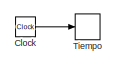
[diagram: root canvas - part 1/3, top right region]
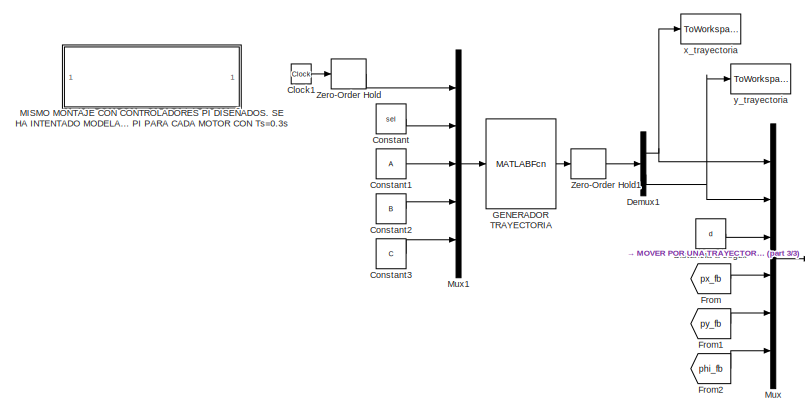
[diagram: root canvas - part 2/3, left side, full height]
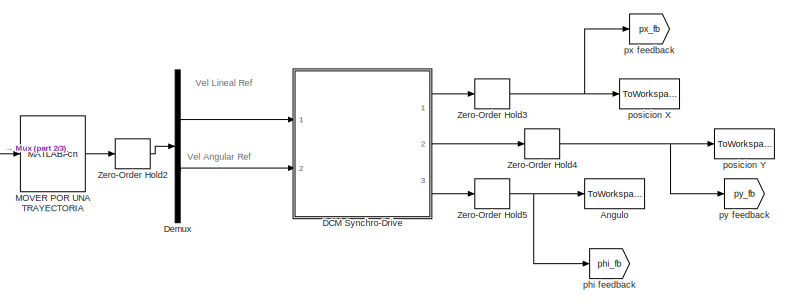
[diagram: root canvas - part 3/3, central region]
MODEL slx_b53bb859597c
KIND model
CONFIG AbsTol = auto
CONFIG EnableMultiTasking = off
CONFIG FixedStep = auto
CONFIG MaxStep = auto
CONFIG MinStep = auto
CONFIG RelTol = 1e-3
CONFIG SampleTimeConstraint = Unconstrained
CONFIG Solver = VariableStepAuto
CONFIG SolverName = VariableStepAuto
CONFIG StartTime = 0.0
CONFIG StopTime = tsim
BLOCK [ToWorkspace] Angulo
  FixptAsFi = on
  MaxDataPoints = inf
  Ports = [1]
  SampleTime = -1
  Save2DSignal = 3-D array (concatenate along third dimension)
  VariableName = ang_phi
BLOCK [Clock] Clock
BLOCK [Clock] Clock1
BLOCK [Constant] Constant
  Value = sel
BLOCK [Constant] Constant1
  Value = A
BLOCK [Constant] Constant2
  Value = B
BLOCK [Constant] Constant3
  Value = C
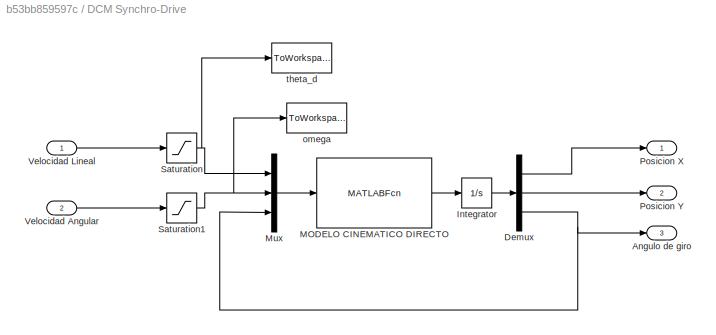
BLOCK [SubSystem] DCM Synchro-Drive
  Ports = [2, 3]
  RequestExecContextInheritance = off
  Variant = off
BLOCK [Outport] DCM Synchro-Drive/Angulo de giro
  IconDisplay = Port number
  Port = 3
BLOCK [Demux] DCM Synchro-Drive/Demux
  DisplayOption = bar
  Outputs = 3
  Ports = [1, 3]
BLOCK [Integrator] DCM Synchro-Drive/Integrator
  InitialCondition = pos_init
  Ports = [1, 1]
BLOCK [MATLABFcn] DCM Synchro-Drive/MODELO CINEMATICO DIRECTO
  MATLABFcn = MCD_movil
  OutputDimensions = 3
  Ports = [1, 1]
BLOCK [Mux] DCM Synchro-Drive/Mux
  DisplayOption = bar
  Inputs = 3
  Ports = [3, 1]
BLOCK [Outport] DCM Synchro-Drive/Posicion X
  IconDisplay = Port number
BLOCK [Outport] DCM Synchro-Drive/Posicion Y
  IconDisplay = Port number
  Port = 2
BLOCK [Saturate] DCM Synchro-Drive/Saturation
  InputPortMap = u0
  LowerLimit = tetha_d_sat(1)
  Ports = [1, 1]
  UpperLimit = tetha_d_sat(2)
BLOCK [Saturate] DCM Synchro-Drive/Saturation1
  InputPortMap = u0
  LowerLimit = omega_sat(1)
  Ports = [1, 1]
  UpperLimit = omega_sat(2)
BLOCK [Inport] DCM Synchro-Drive/Velocidad Angular
  IconDisplay = Port number
  Port = 2
BLOCK [Inport] DCM Synchro-Drive/Velocidad Lineal
  IconDisplay = Port number
BLOCK [ToWorkspace] DCM Synchro-Drive/omega
  FixptAsFi = on
  MaxDataPoints = inf
  Ports = [1]
  SampleTime = -1
  Save2DSignal = 3-D array (concatenate along third dimension)
  VariableName = omega
BLOCK [ToWorkspace] DCM Synchro-Drive/theta_d
  FixptAsFi = on
  MaxDataPoints = inf
  Ports = [1]
  SampleTime = -1
  Save2DSignal = 3-D array (concatenate along third dimension)
  VariableName = theta_d
BLOCK [Demux] Demux
  DisplayOption = bar
  Outputs = 2
  Ports = [1, 2]
BLOCK [Demux] Demux1
  DisplayOption = bar
  Outputs = 2
  Ports = [1, 2]
BLOCK [Constant] Distancia a seguir
  Value = d
BLOCK [From] From
  GotoTag = px_fb
BLOCK [From] From1
  GotoTag = py_fb
BLOCK [From] From2
  GotoTag = phi_fb
BLOCK [MATLABFcn] GENERADOR TRAYECTORIA
  MATLABFcn = generador_tray
  OutputDimensions = 2
  Ports = [1, 1]
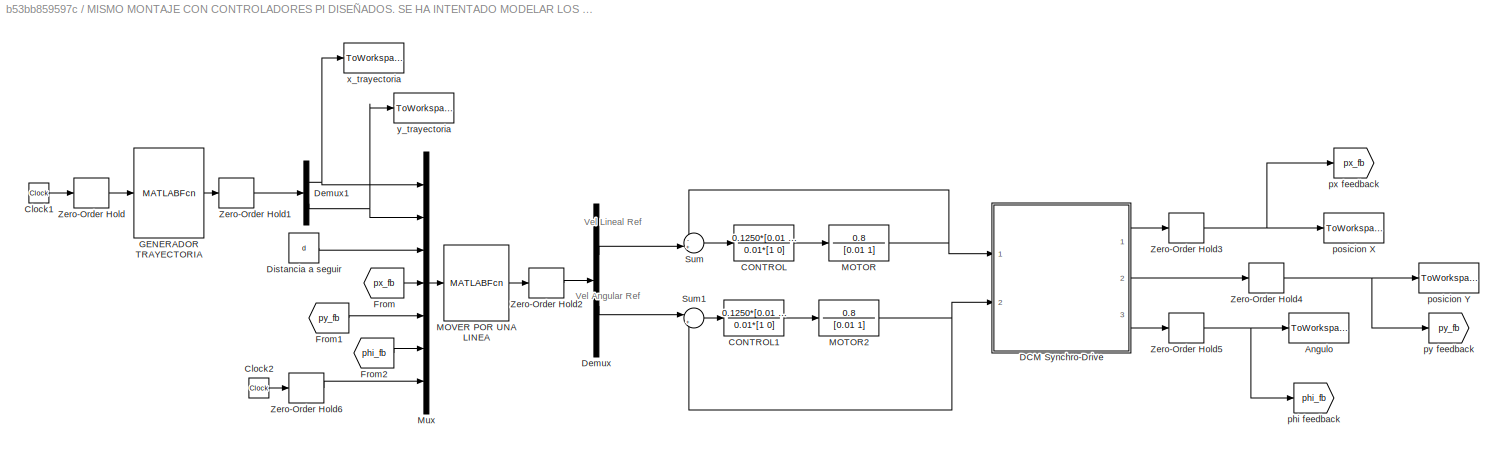
BLOCK [SubSystem] MISMO MONTAJE CON CONTROLADORES PI DISEÑADOS. SE HA INTENTADO MODELAR LOS MOTORES Y DISEÑAR UN PI PARA CADA MOTOR CON Ts=0.3s
  Commented = on
  Ports = []
  RequestExecContextInheritance = off
  Variant = off
BLOCK [ToWorkspace] MISMO MONTAJE CON CONTROLADORES PI DISEÑADOS. SE HA INTENTADO MODELAR LOS MOTORES Y DISEÑAR UN PI PARA CADA MOTOR CON Ts=0.3s/Angulo
  FixptAsFi = on
  MaxDataPoints = inf
  Ports = [1]
  SampleTime = -1
  Save2DSignal = 3-D array (concatenate along third dimension)
  VariableName = ang_phi1
BLOCK [TransferFcn] MISMO MONTAJE CON CONTROLADORES PI DISEÑADOS. SE HA INTENTADO MODELAR LOS MOTORES Y DISEÑAR UN PI PARA CADA MOTOR CON Ts=0.3s/CONTROL
  Denominator = 0.01*[1 0]
  Numerator = 0.1250*[0.01 1]
BLOCK [TransferFcn] MISMO MONTAJE CON CONTROLADORES PI DISEÑADOS. SE HA INTENTADO MODELAR LOS MOTORES Y DISEÑAR UN PI PARA CADA MOTOR CON Ts=0.3s/CONTROL1
  Denominator = 0.01*[1 0]
  Numerator = 0.1250*[0.01 1]
BLOCK [Clock] MISMO MONTAJE CON CONTROLADORES PI DISEÑADOS. SE HA INTENTADO MODELAR LOS MOTORES Y DISEÑAR UN PI PARA CADA MOTOR CON Ts=0.3s/Clock1
BLOCK [Clock] MISMO MONTAJE CON CONTROLADORES PI DISEÑADOS. SE HA INTENTADO MODELAR LOS MOTORES Y DISEÑAR UN PI PARA CADA MOTOR CON Ts=0.3s/Clock2
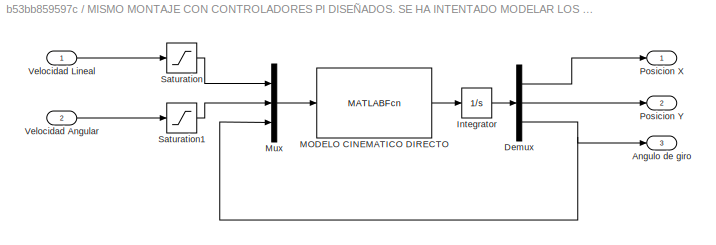
BLOCK [SubSystem] MISMO MONTAJE CON CONTROLADORES PI DISEÑADOS. SE HA INTENTADO MODELAR LOS MOTORES Y DISEÑAR UN PI PARA CADA MOTOR CON Ts=0.3s/DCM Synchro-Drive
  Ports = [2, 3]
  RequestExecContextInheritance = off
  Variant = off
BLOCK [Outport] MISMO MONTAJE CON CONTROLADORES PI DISEÑADOS. SE HA INTENTADO MODELAR LOS MOTORES Y DISEÑAR UN PI PARA CADA MOTOR CON Ts=0.3s/DCM Synchro-Drive/Angulo de giro
  IconDisplay = Port number
  Port = 3
BLOCK [Demux] MISMO MONTAJE CON CONTROLADORES PI DISEÑADOS. SE HA INTENTADO MODELAR LOS MOTORES Y DISEÑAR UN PI PARA CADA MOTOR CON Ts=0.3s/DCM Synchro-Drive/Demux
  DisplayOption = bar
  Outputs = 3
  Ports = [1, 3]
BLOCK [Integrator] MISMO MONTAJE CON CONTROLADORES PI DISEÑADOS. SE HA INTENTADO MODELAR LOS MOTORES Y DISEÑAR UN PI PARA CADA MOTOR CON Ts=0.3s/DCM Synchro-Drive/Integrator
  InitialCondition = pos_init
  Ports = [1, 1]
BLOCK [MATLABFcn] MISMO MONTAJE CON CONTROLADORES PI DISEÑADOS. SE HA INTENTADO MODELAR LOS MOTORES Y DISEÑAR UN PI PARA CADA MOTOR CON Ts=0.3s/DCM Synchro-Drive/MODELO CINEMATICO DIRECTO
  MATLABFcn = MCD_movil
  OutputDimensions = 3
  Ports = [1, 1]
BLOCK [Mux] MISMO MONTAJE CON CONTROLADORES PI DISEÑADOS. SE HA INTENTADO MODELAR LOS MOTORES Y DISEÑAR UN PI PARA CADA MOTOR CON Ts=0.3s/DCM Synchro-Drive/Mux
  DisplayOption = bar
  Inputs = 3
  Ports = [3, 1]
BLOCK [Outport] MISMO MONTAJE CON CONTROLADORES PI DISEÑADOS. SE HA INTENTADO MODELAR LOS MOTORES Y DISEÑAR UN PI PARA CADA MOTOR CON Ts=0.3s/DCM Synchro-Drive/Posicion X
  IconDisplay = Port number
BLOCK [Outport] MISMO MONTAJE CON CONTROLADORES PI DISEÑADOS. SE HA INTENTADO MODELAR LOS MOTORES Y DISEÑAR UN PI PARA CADA MOTOR CON Ts=0.3s/DCM Synchro-Drive/Posicion Y
  IconDisplay = Port number
  Port = 2
BLOCK [Saturate] MISMO MONTAJE CON CONTROLADORES PI DISEÑADOS. SE HA INTENTADO MODELAR LOS MOTORES Y DISEÑAR UN PI PARA CADA MOTOR CON Ts=0.3s/DCM Synchro-Drive/Saturation
  InputPortMap = u0
  LowerLimit = tetha_d_sat(1)
  Ports = [1, 1]
  UpperLimit = tetha_d_sat(2)
BLOCK [Saturate] MISMO MONTAJE CON CONTROLADORES PI DISEÑADOS. SE HA INTENTADO MODELAR LOS MOTORES Y DISEÑAR UN PI PARA CADA MOTOR CON Ts=0.3s/DCM Synchro-Drive/Saturation1
  InputPortMap = u0
  LowerLimit = omega_sat(1)
  Ports = [1, 1]
  UpperLimit = omega_sat(2)
BLOCK [Inport] MISMO MONTAJE CON CONTROLADORES PI DISEÑADOS. SE HA INTENTADO MODELAR LOS MOTORES Y DISEÑAR UN PI PARA CADA MOTOR CON Ts=0.3s/DCM Synchro-Drive/Velocidad Angular
  IconDisplay = Port number
  Port = 2
BLOCK [Inport] MISMO MONTAJE CON CONTROLADORES PI DISEÑADOS. SE HA INTENTADO MODELAR LOS MOTORES Y DISEÑAR UN PI PARA CADA MOTOR CON Ts=0.3s/DCM Synchro-Drive/Velocidad Lineal
  IconDisplay = Port number
BLOCK [Demux] MISMO MONTAJE CON CONTROLADORES PI DISEÑADOS. SE HA INTENTADO MODELAR LOS MOTORES Y DISEÑAR UN PI PARA CADA MOTOR CON Ts=0.3s/Demux
  DisplayOption = bar
  Outputs = 2
  Ports = [1, 2]
BLOCK [Demux] MISMO MONTAJE CON CONTROLADORES PI DISEÑADOS. SE HA INTENTADO MODELAR LOS MOTORES Y DISEÑAR UN PI PARA CADA MOTOR CON Ts=0.3s/Demux1
  DisplayOption = bar
  Outputs = 2
  Ports = [1, 2]
BLOCK [Constant] MISMO MONTAJE CON CONTROLADORES PI DISEÑADOS. SE HA INTENTADO MODELAR LOS MOTORES Y DISEÑAR UN PI PARA CADA MOTOR CON Ts=0.3s/Distancia a seguir
  Value = d
BLOCK [From] MISMO MONTAJE CON CONTROLADORES PI DISEÑADOS. SE HA INTENTADO MODELAR LOS MOTORES Y DISEÑAR UN PI PARA CADA MOTOR CON Ts=0.3s/From
  GotoTag = px_fb
BLOCK [From] MISMO MONTAJE CON CONTROLADORES PI DISEÑADOS. SE HA INTENTADO MODELAR LOS MOTORES Y DISEÑAR UN PI PARA CADA MOTOR CON Ts=0.3s/From1
  GotoTag = py_fb
BLOCK [From] MISMO MONTAJE CON CONTROLADORES PI DISEÑADOS. SE HA INTENTADO MODELAR LOS MOTORES Y DISEÑAR UN PI PARA CADA MOTOR CON Ts=0.3s/From2
  GotoTag = phi_fb
BLOCK [MATLABFcn] MISMO MONTAJE CON CONTROLADORES PI DISEÑADOS. SE HA INTENTADO MODELAR LOS MOTORES Y DISEÑAR UN PI PARA CADA MOTOR CON Ts=0.3s/GENERADOR TRAYECTORIA
  MATLABFcn = generador_tray
  OutputDimensions = 2
  Ports = [1, 1]
BLOCK [TransferFcn] MISMO MONTAJE CON CONTROLADORES PI DISEÑADOS. SE HA INTENTADO MODELAR LOS MOTORES Y DISEÑAR UN PI PARA CADA MOTOR CON Ts=0.3s/MOTOR
  Denominator = [0.01 1]
  Numerator = 0.8
BLOCK [TransferFcn] MISMO MONTAJE CON CONTROLADORES PI DISEÑADOS. SE HA INTENTADO MODELAR LOS MOTORES Y DISEÑAR UN PI PARA CADA MOTOR CON Ts=0.3s/MOTOR2
  Denominator = [0.01 1]
  Numerator = 0.8
BLOCK [MATLABFcn] MISMO MONTAJE CON CONTROLADORES PI DISEÑADOS. SE HA INTENTADO MODELAR LOS MOTORES Y DISEÑAR UN PI PARA CADA MOTOR CON Ts=0.3s/MOVER POR UNA LINEA
  MATLABFcn = control_linea
  OutputDimensions = 2
  Ports = [1, 1]
BLOCK [Mux] MISMO MONTAJE CON CONTROLADORES PI DISEÑADOS. SE HA INTENTADO MODELAR LOS MOTORES Y DISEÑAR UN PI PARA CADA MOTOR CON Ts=0.3s/Mux
  DisplayOption = bar
  Inputs = 7
  Ports = [7, 1]
BLOCK [Sum] MISMO MONTAJE CON CONTROLADORES PI DISEÑADOS. SE HA INTENTADO MODELAR LOS MOTORES Y DISEÑAR UN PI PARA CADA MOTOR CON Ts=0.3s/Sum
  IconShape = round
  InputSameDT = off
  Inputs = -+|
  OutDataTypeStr = Inherit: Inherit via internal rule
  Ports = [2, 1]
  SaturateOnIntegerOverflow = off
BLOCK [Sum] MISMO MONTAJE CON CONTROLADORES PI DISEÑADOS. SE HA INTENTADO MODELAR LOS MOTORES Y DISEÑAR UN PI PARA CADA MOTOR CON Ts=0.3s/Sum1
  IconShape = round
  InputSameDT = off
  Inputs = |+-
  OutDataTypeStr = Inherit: Inherit via internal rule
  Ports = [2, 1]
  SaturateOnIntegerOverflow = off
BLOCK [ZeroOrderHold] MISMO MONTAJE CON CONTROLADORES PI DISEÑADOS. SE HA INTENTADO MODELAR LOS MOTORES Y DISEÑAR UN PI PARA CADA MOTOR CON Ts=0.3s/Zero-Order Hold
  SampleTime = Tm
BLOCK [ZeroOrderHold] MISMO MONTAJE CON CONTROLADORES PI DISEÑADOS. SE HA INTENTADO MODELAR LOS MOTORES Y DISEÑAR UN PI PARA CADA MOTOR CON Ts=0.3s/Zero-Order Hold1
  SampleTime = Tm
BLOCK [ZeroOrderHold] MISMO MONTAJE CON CONTROLADORES PI DISEÑADOS. SE HA INTENTADO MODELAR LOS MOTORES Y DISEÑAR UN PI PARA CADA MOTOR CON Ts=0.3s/Zero-Order Hold2
  SampleTime = Tm
BLOCK [ZeroOrderHold] MISMO MONTAJE CON CONTROLADORES PI DISEÑADOS. SE HA INTENTADO MODELAR LOS MOTORES Y DISEÑAR UN PI PARA CADA MOTOR CON Ts=0.3s/Zero-Order Hold3
  SampleTime = Tm
BLOCK [ZeroOrderHold] MISMO MONTAJE CON CONTROLADORES PI DISEÑADOS. SE HA INTENTADO MODELAR LOS MOTORES Y DISEÑAR UN PI PARA CADA MOTOR CON Ts=0.3s/Zero-Order Hold4
  SampleTime = Tm
BLOCK [ZeroOrderHold] MISMO MONTAJE CON CONTROLADORES PI DISEÑADOS. SE HA INTENTADO MODELAR LOS MOTORES Y DISEÑAR UN PI PARA CADA MOTOR CON Ts=0.3s/Zero-Order Hold5
  SampleTime = Tm
BLOCK [ZeroOrderHold] MISMO MONTAJE CON CONTROLADORES PI DISEÑADOS. SE HA INTENTADO MODELAR LOS MOTORES Y DISEÑAR UN PI PARA CADA MOTOR CON Ts=0.3s/Zero-Order Hold6
  SampleTime = Tm
BLOCK [Goto] MISMO MONTAJE CON CONTROLADORES PI DISEÑADOS. SE HA INTENTADO MODELAR LOS MOTORES Y DISEÑAR UN PI PARA CADA MOTOR CON Ts=0.3s/phi feedback
  GotoTag = phi_fb
BLOCK [ToWorkspace] MISMO MONTAJE CON CONTROLADORES PI DISEÑADOS. SE HA INTENTADO MODELAR LOS MOTORES Y DISEÑAR UN PI PARA CADA MOTOR CON Ts=0.3s/posicion X
  FixptAsFi = on
  MaxDataPoints = inf
  Ports = [1]
  SampleTime = -1
  Save2DSignal = 3-D array (concatenate along third dimension)
  VariableName = posx1
BLOCK [ToWorkspace] MISMO MONTAJE CON CONTROLADORES PI DISEÑADOS. SE HA INTENTADO MODELAR LOS MOTORES Y DISEÑAR UN PI PARA CADA MOTOR CON Ts=0.3s/posicion Y
  FixptAsFi = on
  MaxDataPoints = inf
  Ports = [1]
  SampleTime = -1
  Save2DSignal = 3-D array (concatenate along third dimension)
  VariableName = posy1
BLOCK [Goto] MISMO MONTAJE CON CONTROLADORES PI DISEÑADOS. SE HA INTENTADO MODELAR LOS MOTORES Y DISEÑAR UN PI PARA CADA MOTOR CON Ts=0.3s/px feedback
  GotoTag = px_fb
BLOCK [Goto] MISMO MONTAJE CON CONTROLADORES PI DISEÑADOS. SE HA INTENTADO MODELAR LOS MOTORES Y DISEÑAR UN PI PARA CADA MOTOR CON Ts=0.3s/py feedback
  GotoTag = py_fb
BLOCK [ToWorkspace] MISMO MONTAJE CON CONTROLADORES PI DISEÑADOS. SE HA INTENTADO MODELAR LOS MOTORES Y DISEÑAR UN PI PARA CADA MOTOR CON Ts=0.3s/x_trayectoria
  FixptAsFi = on
  MaxDataPoints = inf
  Ports = [1]
  SampleTime = Tm
  Save2DSignal = 3-D array (concatenate along third dimension)
  VariableName = x_tray1
BLOCK [ToWorkspace] MISMO MONTAJE CON CONTROLADORES PI DISEÑADOS. SE HA INTENTADO MODELAR LOS MOTORES Y DISEÑAR UN PI PARA CADA MOTOR CON Ts=0.3s/y_trayectoria
  FixptAsFi = on
  MaxDataPoints = inf
  Ports = [1]
  SampleTime = Tm
  Save2DSignal = 3-D array (concatenate along third dimension)
  VariableName = y_tray1
BLOCK [MATLABFcn] MOVER POR UNA TRAYECTORIA
  MATLABFcn = control_tray
  OutputDimensions = 2
  Ports = [1, 1]
BLOCK [Mux] Mux
  DisplayOption = bar
  Inputs = 6
  Ports = [6, 1]
BLOCK [Mux] Mux1
  DisplayOption = bar
  Inputs = 5
  Ports = [5, 1]
BLOCK [ToWorkspace] Tiempo
  FixptAsFi = on
  MaxDataPoints = inf
  Ports = [1]
  SampleTime = -1
  Save2DSignal = 3-D array (concatenate along third dimension)
  VariableName = t
BLOCK [ZeroOrderHold] Zero-Order Hold
  SampleTime = Tm
BLOCK [ZeroOrderHold] Zero-Order Hold1
  SampleTime = Tm
BLOCK [ZeroOrderHold] Zero-Order Hold2
  SampleTime = Tm
BLOCK [ZeroOrderHold] Zero-Order Hold3
  SampleTime = Tm
BLOCK [ZeroOrderHold] Zero-Order Hold4
  SampleTime = Tm
BLOCK [ZeroOrderHold] Zero-Order Hold5
  SampleTime = Tm
BLOCK [Goto] phi feedback
  GotoTag = phi_fb
BLOCK [ToWorkspace] posicion X
  FixptAsFi = on
  MaxDataPoints = inf
  Ports = [1]
  SampleTime = -1
  Save2DSignal = 3-D array (concatenate along third dimension)
  VariableName = posx
BLOCK [ToWorkspace] posicion Y
  FixptAsFi = on
  MaxDataPoints = inf
  Ports = [1]
  SampleTime = -1
  Save2DSignal = 3-D array (concatenate along third dimension)
  VariableName = posy
BLOCK [Goto] px feedback
  GotoTag = px_fb
BLOCK [Goto] py feedback
  GotoTag = py_fb
BLOCK [ToWorkspace] x_trayectoria
  FixptAsFi = on
  MaxDataPoints = inf
  Ports = [1]
  SampleTime = Tm
  Save2DSignal = 3-D array (concatenate along third dimension)
  VariableName = x_tray
BLOCK [ToWorkspace] y_trayectoria
  FixptAsFi = on
  MaxDataPoints = inf
  Ports = [1]
  SampleTime = Tm
  Save2DSignal = 3-D array (concatenate along third dimension)
  VariableName = y_tray
ANNOTATION (root): Vel Angular Ref
ANNOTATION (root): Vel Lineal Ref
ANNOTATION MISMO MONTAJE CON CONTROLADORES PI DISEÑADOS. SE HA INTENTADO MODELAR LOS MOTORES Y DISEÑAR UN PI PARA CADA MOTOR CON Ts=0.3s: Vel Angular Ref
ANNOTATION MISMO MONTAJE CON CONTROLADORES PI DISEÑADOS. SE HA INTENTADO MODELAR LOS MOTORES Y DISEÑAR UN PI PARA CADA MOTOR CON Ts=0.3s: Vel Lineal Ref
LINE Clock1:1 -> Zero-Order Hold:1
LINE Clock:1 -> Tiempo:1
LINE Constant1:1 -> Mux1:3
LINE Constant2:1 -> Mux1:4
LINE Constant3:1 -> Mux1:5
LINE Constant:1 -> Mux1:2
LINE DCM Synchro-Drive/Demux:1 -> DCM Synchro-Drive/Posicion X:1
LINE DCM Synchro-Drive/Demux:2 -> DCM Synchro-Drive/Posicion Y:1
NET DCM Synchro-Drive/Demux:3 -> DCM Synchro-Drive/Angulo de giro:1, DCM Synchro-Drive/Mux:3
LINE DCM Synchro-Drive/Integrator:1 -> DCM Synchro-Drive/Demux:1
LINE DCM Synchro-Drive/MODELO CINEMATICO DIRECTO:1 -> DCM Synchro-Drive/Integrator:1
LINE DCM Synchro-Drive/Mux:1 -> DCM Synchro-Drive/MODELO CINEMATICO DIRECTO:1
NET DCM Synchro-Drive/Saturation1:1 -> DCM Synchro-Drive/Mux:2, DCM Synchro-Drive/omega:1
NET DCM Synchro-Drive/Saturation:1 -> DCM Synchro-Drive/Mux:1, DCM Synchro-Drive/theta_d:1
LINE DCM Synchro-Drive/Velocidad Angular:1 -> DCM Synchro-Drive/Saturation1:1
LINE DCM Synchro-Drive/Velocidad Lineal:1 -> DCM Synchro-Drive/Saturation:1
LINE DCM Synchro-Drive:1 -> Zero-Order Hold3:1
LINE DCM Synchro-Drive:2 -> Zero-Order Hold4:1
LINE DCM Synchro-Drive:3 -> Zero-Order Hold5:1
NET Demux1:1 -> Mux:1, x_trayectoria:1
NET Demux1:2 -> Mux:2, y_trayectoria:1
LINE Demux:1 -> DCM Synchro-Drive:1
LINE Demux:2 -> DCM Synchro-Drive:2
LINE Distancia a seguir:1 -> Mux:3
LINE From1:1 -> Mux:5
LINE From2:1 -> Mux:6
LINE From:1 -> Mux:4
LINE GENERADOR TRAYECTORIA:1 -> Zero-Order Hold1:1
LINE MISMO MONTAJE CON CONTROLADORES PI DISEÑADOS. SE HA INTENTADO MODELAR LOS MOTORES Y DISEÑAR UN PI PARA CADA MOTOR CON Ts=0.3s/CONTROL1:1 -> MISMO MONTAJE CON CONTROLADORES PI DISEÑADOS. SE HA INTENTADO MODELAR LOS MOTORES Y DISEÑAR UN PI PARA CADA MOTOR CON Ts=0.3s/MOTOR2:1
LINE MISMO MONTAJE CON CONTROLADORES PI DISEÑADOS. SE HA INTENTADO MODELAR LOS MOTORES Y DISEÑAR UN PI PARA CADA MOTOR CON Ts=0.3s/CONTROL:1 -> MISMO MONTAJE CON CONTROLADORES PI DISEÑADOS. SE HA INTENTADO MODELAR LOS MOTORES Y DISEÑAR UN PI PARA CADA MOTOR CON Ts=0.3s/MOTOR:1
LINE MISMO MONTAJE CON CONTROLADORES PI DISEÑADOS. SE HA INTENTADO MODELAR LOS MOTORES Y DISEÑAR UN PI PARA CADA MOTOR CON Ts=0.3s/Clock1:1 -> MISMO MONTAJE CON CONTROLADORES PI DISEÑADOS. SE HA INTENTADO MODELAR LOS MOTORES Y DISEÑAR UN PI PARA CADA MOTOR CON Ts=0.3s/Zero-Order Hold:1
LINE MISMO MONTAJE CON CONTROLADORES PI DISEÑADOS. SE HA INTENTADO MODELAR LOS MOTORES Y DISEÑAR UN PI PARA CADA MOTOR CON Ts=0.3s/Clock2:1 -> MISMO MONTAJE CON CONTROLADORES PI DISEÑADOS. SE HA INTENTADO MODELAR LOS MOTORES Y DISEÑAR UN PI PARA CADA MOTOR CON Ts=0.3s/Zero-Order Hold6:1
LINE MISMO MONTAJE CON CONTROLADORES PI DISEÑADOS. SE HA INTENTADO MODELAR LOS MOTORES Y DISEÑAR UN PI PARA CADA MOTOR CON Ts=0.3s/DCM Synchro-Drive/Demux:1 -> MISMO MONTAJE CON CONTROLADORES PI DISEÑADOS. SE HA INTENTADO MODELAR LOS MOTORES Y DISEÑAR UN PI PARA CADA MOTOR CON Ts=0.3s/DCM Synchro-Drive/Posicion X:1
LINE MISMO MONTAJE CON CONTROLADORES PI DISEÑADOS. SE HA INTENTADO MODELAR LOS MOTORES Y DISEÑAR UN PI PARA CADA MOTOR CON Ts=0.3s/DCM Synchro-Drive/Demux:2 -> MISMO MONTAJE CON CONTROLADORES PI DISEÑADOS. SE HA INTENTADO MODELAR LOS MOTORES Y DISEÑAR UN PI PARA CADA MOTOR CON Ts=0.3s/DCM Synchro-Drive/Posicion Y:1
NET MISMO MONTAJE CON CONTROLADORES PI DISEÑADOS. SE HA INTENTADO MODELAR LOS MOTORES Y DISEÑAR UN PI PARA CADA MOTOR CON Ts=0.3s/DCM Synchro-Drive/Demux:3 -> MISMO MONTAJE CON CONTROLADORES PI DISEÑADOS. SE HA INTENTADO MODELAR LOS MOTORES Y DISEÑAR UN PI PARA CADA MOTOR CON Ts=0.3s/DCM Synchro-Drive/Angulo de giro:1, MISMO MONTAJE CON CONTROLADORES PI DISEÑADOS. SE HA INTENTADO MODELAR LOS MOTORES Y DISEÑAR UN PI PARA CADA MOTOR CON Ts=0.3s/DCM Synchro-Drive/Mux:3
LINE MISMO MONTAJE CON CONTROLADORES PI DISEÑADOS. SE HA INTENTADO MODELAR LOS MOTORES Y DISEÑAR UN PI PARA CADA MOTOR CON Ts=0.3s/DCM Synchro-Drive/Integrator:1 -> MISMO MONTAJE CON CONTROLADORES PI DISEÑADOS. SE HA INTENTADO MODELAR LOS MOTORES Y DISEÑAR UN PI PARA CADA MOTOR CON Ts=0.3s/DCM Synchro-Drive/Demux:1
LINE MISMO MONTAJE CON CONTROLADORES PI DISEÑADOS. SE HA INTENTADO MODELAR LOS MOTORES Y DISEÑAR UN PI PARA CADA MOTOR CON Ts=0.3s/DCM Synchro-Drive/MODELO CINEMATICO DIRECTO:1 -> MISMO MONTAJE CON CONTROLADORES PI DISEÑADOS. SE HA INTENTADO MODELAR LOS MOTORES Y DISEÑAR UN PI PARA CADA MOTOR CON Ts=0.3s/DCM Synchro-Drive/Integrator:1
LINE MISMO MONTAJE CON CONTROLADORES PI DISEÑADOS. SE HA INTENTADO MODELAR LOS MOTORES Y DISEÑAR UN PI PARA CADA MOTOR CON Ts=0.3s/DCM Synchro-Drive/Mux:1 -> MISMO MONTAJE CON CONTROLADORES PI DISEÑADOS. SE HA INTENTADO MODELAR LOS MOTORES Y DISEÑAR UN PI PARA CADA MOTOR CON Ts=0.3s/DCM Synchro-Drive/MODELO CINEMATICO DIRECTO:1
LINE MISMO MONTAJE CON CONTROLADORES PI DISEÑADOS. SE HA INTENTADO MODELAR LOS MOTORES Y DISEÑAR UN PI PARA CADA MOTOR CON Ts=0.3s/DCM Synchro-Drive/Saturation1:1 -> MISMO MONTAJE CON CONTROLADORES PI DISEÑADOS. SE HA INTENTADO MODELAR LOS MOTORES Y DISEÑAR UN PI PARA CADA MOTOR CON Ts=0.3s/DCM Synchro-Drive/Mux:2
LINE MISMO MONTAJE CON CONTROLADORES PI DISEÑADOS. SE HA INTENTADO MODELAR LOS MOTORES Y DISEÑAR UN PI PARA CADA MOTOR CON Ts=0.3s/DCM Synchro-Drive/Saturation:1 -> MISMO MONTAJE CON CONTROLADORES PI DISEÑADOS. SE HA INTENTADO MODELAR LOS MOTORES Y DISEÑAR UN PI PARA CADA MOTOR CON Ts=0.3s/DCM Synchro-Drive/Mux:1
LINE MISMO MONTAJE CON CONTROLADORES PI DISEÑADOS. SE HA INTENTADO MODELAR LOS MOTORES Y DISEÑAR UN PI PARA CADA MOTOR CON Ts=0.3s/DCM Synchro-Drive/Velocidad Angular:1 -> MISMO MONTAJE CON CONTROLADORES PI DISEÑADOS. SE HA INTENTADO MODELAR LOS MOTORES Y DISEÑAR UN PI PARA CADA MOTOR CON Ts=0.3s/DCM Synchro-Drive/Saturation1:1
LINE MISMO MONTAJE CON CONTROLADORES PI DISEÑADOS. SE HA INTENTADO MODELAR LOS MOTORES Y DISEÑAR UN PI PARA CADA MOTOR CON Ts=0.3s/DCM Synchro-Drive/Velocidad Lineal:1 -> MISMO MONTAJE CON CONTROLADORES PI DISEÑADOS. SE HA INTENTADO MODELAR LOS MOTORES Y DISEÑAR UN PI PARA CADA MOTOR CON Ts=0.3s/DCM Synchro-Drive/Saturation:1
LINE MISMO MONTAJE CON CONTROLADORES PI DISEÑADOS. SE HA INTENTADO MODELAR LOS MOTORES Y DISEÑAR UN PI PARA CADA MOTOR CON Ts=0.3s/DCM Synchro-Drive:1 -> MISMO MONTAJE CON CONTROLADORES PI DISEÑADOS. SE HA INTENTADO MODELAR LOS MOTORES Y DISEÑAR UN PI PARA CADA MOTOR CON Ts=0.3s/Zero-Order Hold3:1
LINE MISMO MONTAJE CON CONTROLADORES PI DISEÑADOS. SE HA INTENTADO MODELAR LOS MOTORES Y DISEÑAR UN PI PARA CADA MOTOR CON Ts=0.3s/DCM Synchro-Drive:2 -> MISMO MONTAJE CON CONTROLADORES PI DISEÑADOS. SE HA INTENTADO MODELAR LOS MOTORES Y DISEÑAR UN PI PARA CADA MOTOR CON Ts=0.3s/Zero-Order Hold4:1
LINE MISMO MONTAJE CON CONTROLADORES PI DISEÑADOS. SE HA INTENTADO MODELAR LOS MOTORES Y DISEÑAR UN PI PARA CADA MOTOR CON Ts=0.3s/DCM Synchro-Drive:3 -> MISMO MONTAJE CON CONTROLADORES PI DISEÑADOS. SE HA INTENTADO MODELAR LOS MOTORES Y DISEÑAR UN PI PARA CADA MOTOR CON Ts=0.3s/Zero-Order Hold5:1
NET MISMO MONTAJE CON CONTROLADORES PI DISEÑADOS. SE HA INTENTADO MODELAR LOS MOTORES Y DISEÑAR UN PI PARA CADA MOTOR CON Ts=0.3s/Demux1:1 -> MISMO MONTAJE CON CONTROLADORES PI DISEÑADOS. SE HA INTENTADO MODELAR LOS MOTORES Y DISEÑAR UN PI PARA CADA MOTOR CON Ts=0.3s/Mux:1, MISMO MONTAJE CON CONTROLADORES PI DISEÑADOS. SE HA INTENTADO MODELAR LOS MOTORES Y DISEÑAR UN PI PARA CADA MOTOR CON Ts=0.3s/x_trayectoria:1
NET MISMO MONTAJE CON CONTROLADORES PI DISEÑADOS. SE HA INTENTADO MODELAR LOS MOTORES Y DISEÑAR UN PI PARA CADA MOTOR CON Ts=0.3s/Demux1:2 -> MISMO MONTAJE CON CONTROLADORES PI DISEÑADOS. SE HA INTENTADO MODELAR LOS MOTORES Y DISEÑAR UN PI PARA CADA MOTOR CON Ts=0.3s/Mux:2, MISMO MONTAJE CON CONTROLADORES PI DISEÑADOS. SE HA INTENTADO MODELAR LOS MOTORES Y DISEÑAR UN PI PARA CADA MOTOR CON Ts=0.3s/y_trayectoria:1
LINE MISMO MONTAJE CON CONTROLADORES PI DISEÑADOS. SE HA INTENTADO MODELAR LOS MOTORES Y DISEÑAR UN PI PARA CADA MOTOR CON Ts=0.3s/Demux:1 -> MISMO MONTAJE CON CONTROLADORES PI DISEÑADOS. SE HA INTENTADO MODELAR LOS MOTORES Y DISEÑAR UN PI PARA CADA MOTOR CON Ts=0.3s/Sum:2
LINE MISMO MONTAJE CON CONTROLADORES PI DISEÑADOS. SE HA INTENTADO MODELAR LOS MOTORES Y DISEÑAR UN PI PARA CADA MOTOR CON Ts=0.3s/Demux:2 -> MISMO MONTAJE CON CONTROLADORES PI DISEÑADOS. SE HA INTENTADO MODELAR LOS MOTORES Y DISEÑAR UN PI PARA CADA MOTOR CON Ts=0.3s/Sum1:1
LINE MISMO MONTAJE CON CONTROLADORES PI DISEÑADOS. SE HA INTENTADO MODELAR LOS MOTORES Y DISEÑAR UN PI PARA CADA MOTOR CON Ts=0.3s/Distancia a seguir:1 -> MISMO MONTAJE CON CONTROLADORES PI DISEÑADOS. SE HA INTENTADO MODELAR LOS MOTORES Y DISEÑAR UN PI PARA CADA MOTOR CON Ts=0.3s/Mux:3
LINE MISMO MONTAJE CON CONTROLADORES PI DISEÑADOS. SE HA INTENTADO MODELAR LOS MOTORES Y DISEÑAR UN PI PARA CADA MOTOR CON Ts=0.3s/From1:1 -> MISMO MONTAJE CON CONTROLADORES PI DISEÑADOS. SE HA INTENTADO MODELAR LOS MOTORES Y DISEÑAR UN PI PARA CADA MOTOR CON Ts=0.3s/Mux:5
LINE MISMO MONTAJE CON CONTROLADORES PI DISEÑADOS. SE HA INTENTADO MODELAR LOS MOTORES Y DISEÑAR UN PI PARA CADA MOTOR CON Ts=0.3s/From2:1 -> MISMO MONTAJE CON CONTROLADORES PI DISEÑADOS. SE HA INTENTADO MODELAR LOS MOTORES Y DISEÑAR UN PI PARA CADA MOTOR CON Ts=0.3s/Mux:6
LINE MISMO MONTAJE CON CONTROLADORES PI DISEÑADOS. SE HA INTENTADO MODELAR LOS MOTORES Y DISEÑAR UN PI PARA CADA MOTOR CON Ts=0.3s/From:1 -> MISMO MONTAJE CON CONTROLADORES PI DISEÑADOS. SE HA INTENTADO MODELAR LOS MOTORES Y DISEÑAR UN PI PARA CADA MOTOR CON Ts=0.3s/Mux:4
LINE MISMO MONTAJE CON CONTROLADORES PI DISEÑADOS. SE HA INTENTADO MODELAR LOS MOTORES Y DISEÑAR UN PI PARA CADA MOTOR CON Ts=0.3s/GENERADOR TRAYECTORIA:1 -> MISMO MONTAJE CON CONTROLADORES PI DISEÑADOS. SE HA INTENTADO MODELAR LOS MOTORES Y DISEÑAR UN PI PARA CADA MOTOR CON Ts=0.3s/Zero-Order Hold1:1
NET MISMO MONTAJE CON CONTROLADORES PI DISEÑADOS. SE HA INTENTADO MODELAR LOS MOTORES Y DISEÑAR UN PI PARA CADA MOTOR CON Ts=0.3s/MOTOR2:1 -> MISMO MONTAJE CON CONTROLADORES PI DISEÑADOS. SE HA INTENTADO MODELAR LOS MOTORES Y DISEÑAR UN PI PARA CADA MOTOR CON Ts=0.3s/DCM Synchro-Drive:2, MISMO MONTAJE CON CONTROLADORES PI DISEÑADOS. SE HA INTENTADO MODELAR LOS MOTORES Y DISEÑAR UN PI PARA CADA MOTOR CON Ts=0.3s/Sum1:2
NET MISMO MONTAJE CON CONTROLADORES PI DISEÑADOS. SE HA INTENTADO MODELAR LOS MOTORES Y DISEÑAR UN PI PARA CADA MOTOR CON Ts=0.3s/MOTOR:1 -> MISMO MONTAJE CON CONTROLADORES PI DISEÑADOS. SE HA INTENTADO MODELAR LOS MOTORES Y DISEÑAR UN PI PARA CADA MOTOR CON Ts=0.3s/DCM Synchro-Drive:1, MISMO MONTAJE CON CONTROLADORES PI DISEÑADOS. SE HA INTENTADO MODELAR LOS MOTORES Y DISEÑAR UN PI PARA CADA MOTOR CON Ts=0.3s/Sum:1
LINE MISMO MONTAJE CON CONTROLADORES PI DISEÑADOS. SE HA INTENTADO MODELAR LOS MOTORES Y DISEÑAR UN PI PARA CADA MOTOR CON Ts=0.3s/MOVER POR UNA LINEA:1 -> MISMO MONTAJE CON CONTROLADORES PI DISEÑADOS. SE HA INTENTADO MODELAR LOS MOTORES Y DISEÑAR UN PI PARA CADA MOTOR CON Ts=0.3s/Zero-Order Hold2:1
LINE MISMO MONTAJE CON CONTROLADORES PI DISEÑADOS. SE HA INTENTADO MODELAR LOS MOTORES Y DISEÑAR UN PI PARA CADA MOTOR CON Ts=0.3s/Mux:1 -> MISMO MONTAJE CON CONTROLADORES PI DISEÑADOS. SE HA INTENTADO MODELAR LOS MOTORES Y DISEÑAR UN PI PARA CADA MOTOR CON Ts=0.3s/MOVER POR UNA LINEA:1
LINE MISMO MONTAJE CON CONTROLADORES PI DISEÑADOS. SE HA INTENTADO MODELAR LOS MOTORES Y DISEÑAR UN PI PARA CADA MOTOR CON Ts=0.3s/Sum1:1 -> MISMO MONTAJE CON CONTROLADORES PI DISEÑADOS. SE HA INTENTADO MODELAR LOS MOTORES Y DISEÑAR UN PI PARA CADA MOTOR CON Ts=0.3s/CONTROL1:1
LINE MISMO MONTAJE CON CONTROLADORES PI DISEÑADOS. SE HA INTENTADO MODELAR LOS MOTORES Y DISEÑAR UN PI PARA CADA MOTOR CON Ts=0.3s/Sum:1 -> MISMO MONTAJE CON CONTROLADORES PI DISEÑADOS. SE HA INTENTADO MODELAR LOS MOTORES Y DISEÑAR UN PI PARA CADA MOTOR CON Ts=0.3s/CONTROL:1
LINE MISMO MONTAJE CON CONTROLADORES PI DISEÑADOS. SE HA INTENTADO MODELAR LOS MOTORES Y DISEÑAR UN PI PARA CADA MOTOR CON Ts=0.3s/Zero-Order Hold1:1 -> MISMO MONTAJE CON CONTROLADORES PI DISEÑADOS. SE HA INTENTADO MODELAR LOS MOTORES Y DISEÑAR UN PI PARA CADA MOTOR CON Ts=0.3s/Demux1:1
LINE MISMO MONTAJE CON CONTROLADORES PI DISEÑADOS. SE HA INTENTADO MODELAR LOS MOTORES Y DISEÑAR UN PI PARA CADA MOTOR CON Ts=0.3s/Zero-Order Hold2:1 -> MISMO MONTAJE CON CONTROLADORES PI DISEÑADOS. SE HA INTENTADO MODELAR LOS MOTORES Y DISEÑAR UN PI PARA CADA MOTOR CON Ts=0.3s/Demux:1
NET MISMO MONTAJE CON CONTROLADORES PI DISEÑADOS. SE HA INTENTADO MODELAR LOS MOTORES Y DISEÑAR UN PI PARA CADA MOTOR CON Ts=0.3s/Zero-Order Hold3:1 -> MISMO MONTAJE CON CONTROLADORES PI DISEÑADOS. SE HA INTENTADO MODELAR LOS MOTORES Y DISEÑAR UN PI PARA CADA MOTOR CON Ts=0.3s/posicion X:1, MISMO MONTAJE CON CONTROLADORES PI DISEÑADOS. SE HA INTENTADO MODELAR LOS MOTORES Y DISEÑAR UN PI PARA CADA MOTOR CON Ts=0.3s/px feedback:1
NET MISMO MONTAJE CON CONTROLADORES PI DISEÑADOS. SE HA INTENTADO MODELAR LOS MOTORES Y DISEÑAR UN PI PARA CADA MOTOR CON Ts=0.3s/Zero-Order Hold4:1 -> MISMO MONTAJE CON CONTROLADORES PI DISEÑADOS. SE HA INTENTADO MODELAR LOS MOTORES Y DISEÑAR UN PI PARA CADA MOTOR CON Ts=0.3s/posicion Y:1, MISMO MONTAJE CON CONTROLADORES PI DISEÑADOS. SE HA INTENTADO MODELAR LOS MOTORES Y DISEÑAR UN PI PARA CADA MOTOR CON Ts=0.3s/py feedback:1
NET MISMO MONTAJE CON CONTROLADORES PI DISEÑADOS. SE HA INTENTADO MODELAR LOS MOTORES Y DISEÑAR UN PI PARA CADA MOTOR CON Ts=0.3s/Zero-Order Hold5:1 -> MISMO MONTAJE CON CONTROLADORES PI DISEÑADOS. SE HA INTENTADO MODELAR LOS MOTORES Y DISEÑAR UN PI PARA CADA MOTOR CON Ts=0.3s/Angulo:1, MISMO MONTAJE CON CONTROLADORES PI DISEÑADOS. SE HA INTENTADO MODELAR LOS MOTORES Y DISEÑAR UN PI PARA CADA MOTOR CON Ts=0.3s/phi feedback:1
LINE MISMO MONTAJE CON CONTROLADORES PI DISEÑADOS. SE HA INTENTADO MODELAR LOS MOTORES Y DISEÑAR UN PI PARA CADA MOTOR CON Ts=0.3s/Zero-Order Hold6:1 -> MISMO MONTAJE CON CONTROLADORES PI DISEÑADOS. SE HA INTENTADO MODELAR LOS MOTORES Y DISEÑAR UN PI PARA CADA MOTOR CON Ts=0.3s/Mux:7
LINE MISMO MONTAJE CON CONTROLADORES PI DISEÑADOS. SE HA INTENTADO MODELAR LOS MOTORES Y DISEÑAR UN PI PARA CADA MOTOR CON Ts=0.3s/Zero-Order Hold:1 -> MISMO MONTAJE CON CONTROLADORES PI DISEÑADOS. SE HA INTENTADO MODELAR LOS MOTORES Y DISEÑAR UN PI PARA CADA MOTOR CON Ts=0.3s/GENERADOR TRAYECTORIA:1
LINE MOVER POR UNA TRAYECTORIA:1 -> Zero-Order Hold2:1
LINE Mux1:1 -> GENERADOR TRAYECTORIA:1
LINE Mux:1 -> MOVER POR UNA TRAYECTORIA:1
LINE Zero-Order Hold1:1 -> Demux1:1
LINE Zero-Order Hold2:1 -> Demux:1
NET Zero-Order Hold3:1 -> posicion X:1, px feedback:1
NET Zero-Order Hold4:1 -> posicion Y:1, py feedback:1
NET Zero-Order Hold5:1 -> Angulo:1, phi feedback:1
LINE Zero-Order Hold:1 -> Mux1:1
note: NET lines group one-source signal fan-out (src -> all destinations, sorted); 1:1 wires keep LINE
